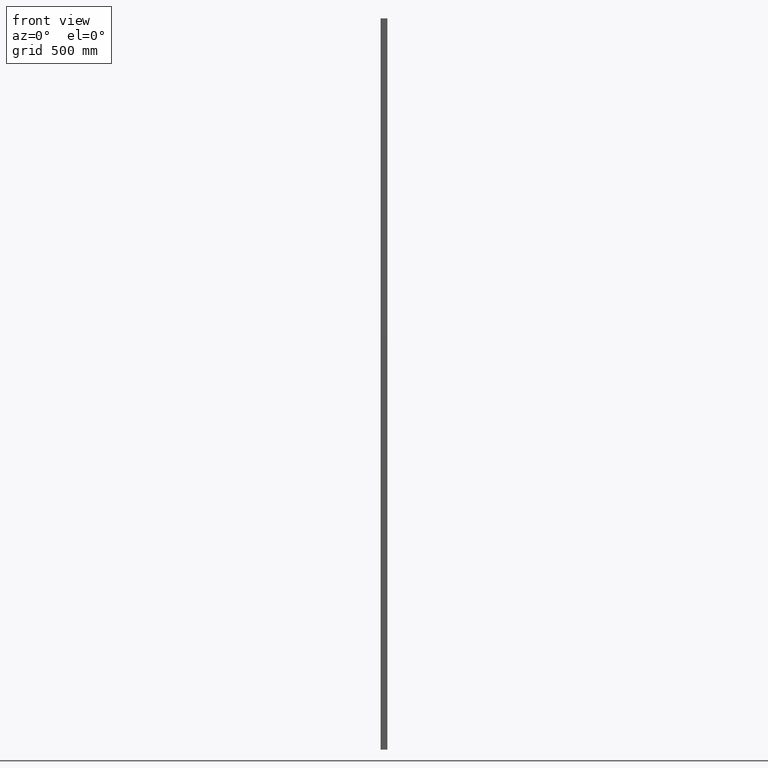
[diagram: clean part render]
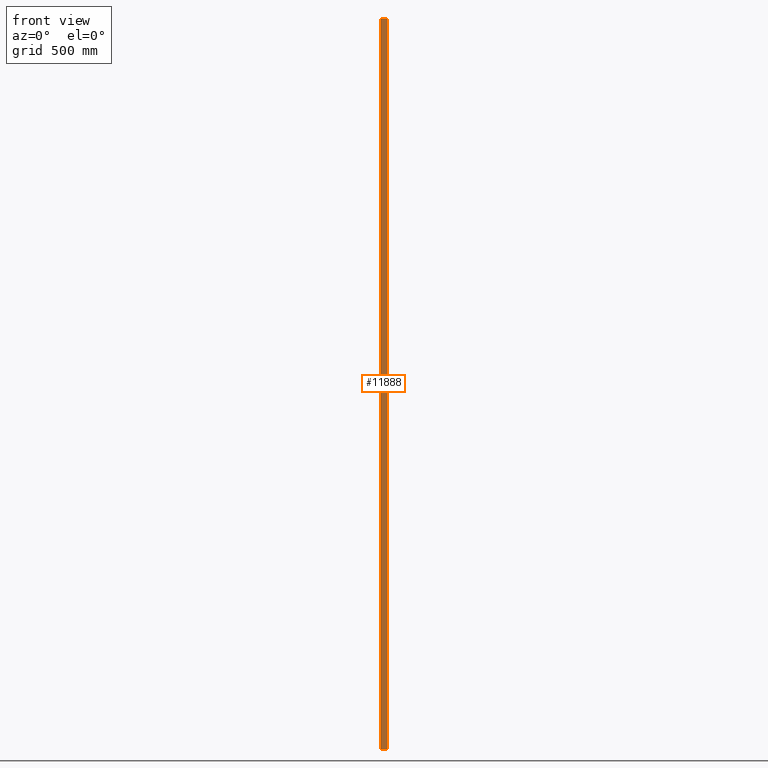
[diagram: same view with one face highlighted and labeled with its STEP entity id]
A machine part, front view. The second image highlights one B-rep face of the part: STEP entity #11888.
In plain terms, the highlighted planar face has unit normal (0, 1, -0).
Its self-contained STEP definition (entity closure, byte-faithful):
#631 = VERTEX_POINT ( 'NONE', #10797 ) ;
#1571 = DIRECTION ( 'NONE',  ( 1.445602896647339163E-16, 1.000000000000000000, -0.000000000000000000 ) ) ;
#4393 = ORIENTED_EDGE ( 'NONE', *, *, #13914, .T. ) ;
#4579 = VERTEX_POINT ( 'NONE', #6836 ) ;
#4888 = AXIS2_PLACEMENT_3D ( 'NONE', #13988, #1571, #7304 ) ;
#5209 = DIRECTION ( 'NONE',  ( 1.000000000000000000, -1.445602896647339163E-16, 0.000000000000000000 ) ) ;
#5370 = DIRECTION ( 'NONE',  ( -0.000000000000000000, -0.000000000000000000, -1.000000000000000000 ) ) ;
#6250 = CARTESIAN_POINT ( 'NONE',  ( 11.99999999999999822, 23.99999999999999645, 1500.000000000000000 ) ) ;
#6347 = VERTEX_POINT ( 'NONE', #13194 ) ;
#6836 = CARTESIAN_POINT ( 'NONE',  ( 11.99999999999999822, 23.99999999999999645, -1500.000000000000000 ) ) ;
#6845 = DIRECTION ( 'NONE',  ( 1.000000000000000000, -1.445602896647339163E-16, 0.000000000000000000 ) ) ;
#6951 = CARTESIAN_POINT ( 'NONE',  ( -12.00000000000000178, 24.00000000000000000, -1500.000000000000000 ) ) ;
#7101 = ORIENTED_EDGE ( 'NONE', *, *, #7561, .F. ) ;
#7304 = DIRECTION ( 'NONE',  ( -1.000000000000000000, 1.445602896647339163E-16, 0.000000000000000000 ) ) ;
#7363 = VECTOR ( 'NONE', #5370, 1000.000000000000000 ) ;
#7398 = VECTOR ( 'NONE', #6845, 1000.000000000000000 ) ;
#7472 = CARTESIAN_POINT ( 'NONE',  ( 11.99999999999999822, 23.99999999999999645, 1500.000000000000000 ) ) ;
#7561 = EDGE_CURVE ( 'NONE', #10337, #4579, #10704, .T. ) ;
#8379 = ORIENTED_EDGE ( 'NONE', *, *, #12401, .T. ) ;
#9487 = ORIENTED_EDGE ( 'NONE', *, *, #12306, .F. ) ;
#9675 = LINE ( 'NONE', #6951, #7398 ) ;
#9795 = CARTESIAN_POINT ( 'NONE',  ( -12.00000000000000178, 24.00000000000000000, 1500.000000000000000 ) ) ;
#9838 = VECTOR ( 'NONE', #13074, 1000.000000000000000 ) ;
#10337 = VERTEX_POINT ( 'NONE', #6250 ) ;
#10704 = LINE ( 'NONE', #7472, #9838 ) ;
#10797 = CARTESIAN_POINT ( 'NONE',  ( -12.00000000000000178, 24.00000000000000000, -1500.000000000000000 ) ) ;
#10975 = CARTESIAN_POINT ( 'NONE',  ( -12.00000000000000178, 24.00000000000000000, 1500.000000000000000 ) ) ;
#11058 = LINE ( 'NONE', #9795, #7363 ) ;
#11888 = ADVANCED_FACE ( 'NONE', ( #14271 ), #14035, .F. ) ;
#12306 = EDGE_CURVE ( 'NONE', #6347, #10337, #13547, .T. ) ;
#12401 = EDGE_CURVE ( 'NONE', #631, #4579, #9675, .T. ) ;
#13074 = DIRECTION ( 'NONE',  ( -0.000000000000000000, -0.000000000000000000, -1.000000000000000000 ) ) ;
#13194 = CARTESIAN_POINT ( 'NONE',  ( -12.00000000000000178, 24.00000000000000000, 1500.000000000000000 ) ) ;
#13547 = LINE ( 'NONE', #10975, #14440 ) ;
#13914 = EDGE_CURVE ( 'NONE', #6347, #631, #11058, .T. ) ;
#13988 = CARTESIAN_POINT ( 'NONE',  ( -12.00000000000000178, 24.00000000000000000, 1500.000000000000000 ) ) ;
#14035 = PLANE ( 'NONE',  #4888 ) ;
#14271 = FACE_OUTER_BOUND ( 'NONE', #14342, .T. ) ;
#14342 = EDGE_LOOP ( 'NONE', ( #8379, #7101, #9487, #4393 ) ) ;
#14440 = VECTOR ( 'NONE', #5209, 1000.000000000000000 ) ;